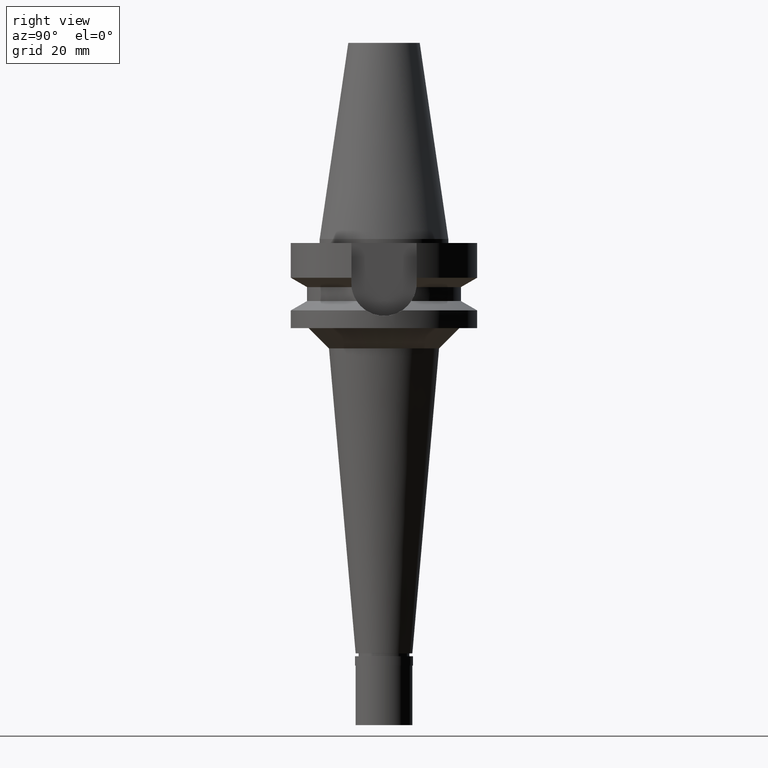
[diagram: clean part render]
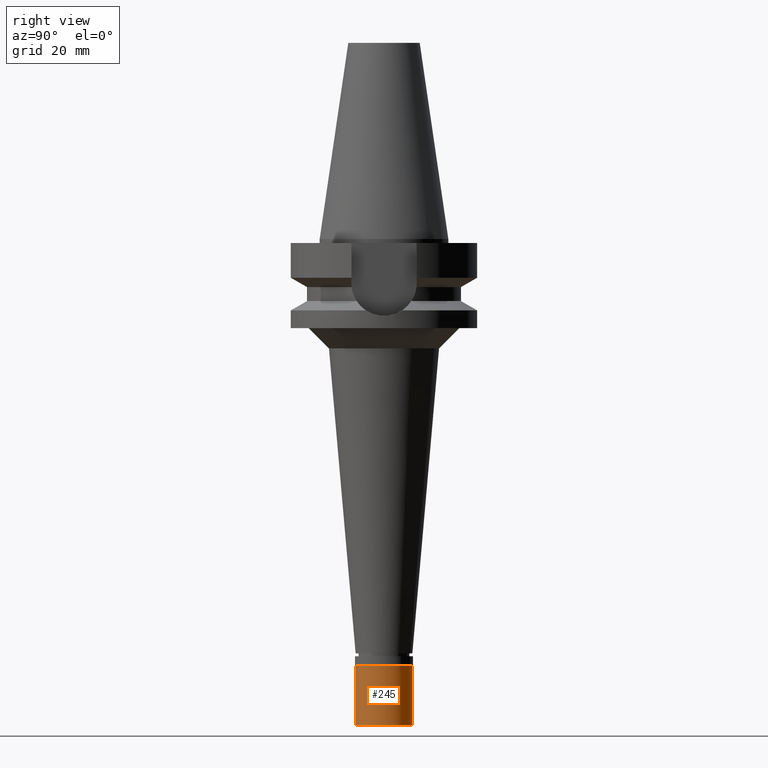
[diagram: same view with one face highlighted and labeled with its STEP entity id]
A machine part, right view. The second image highlights one B-rep face of the part: STEP entity #245.
In plain terms, the highlighted cylindrical surface (edge-blend (fillet) strip) has radius 7 mm, axis along (0, 0, 1).
Its self-contained STEP definition (entity closure, byte-faithful):
#6 = CARTESIAN_POINT ( 'NONE',  ( 0.0000000000000000000, 7.000000000000000000, -17.00000000000000000 ) ) ;
#63 = CYLINDRICAL_SURFACE ( 'NONE', #2703, 7.000000000000000000 ) ;
#146 = CARTESIAN_POINT ( 'NONE',  ( 0.0000000000000000000, 7.000000000000000000, -2.299999999999999822 ) ) ;
#245 = ADVANCED_FACE ( 'NONE', ( #2552 ), #63, .T. ) ;
#392 = DIRECTION ( 'NONE',  ( 0.0000000000000000000, 0.0000000000000000000, 1.000000000000000000 ) ) ;
#428 = EDGE_CURVE ( 'NONE', #584, #2195, #820, .T. ) ;
#510 = DIRECTION ( 'NONE',  ( 0.0000000000000000000, 1.000000000000000000, 0.0000000000000000000 ) ) ;
#584 = VERTEX_POINT ( 'NONE', #146 ) ;
#595 = EDGE_LOOP ( 'NONE', ( #1697, #742, #2941, #1247 ) ) ;
#674 = DIRECTION ( 'NONE',  ( 0.0000000000000000000, -1.000000000000000000, 0.0000000000000000000 ) ) ;
#681 = EDGE_CURVE ( 'NONE', #2131, #2195, #2602, .T. ) ;
#742 = ORIENTED_EDGE ( 'NONE', *, *, #819, .T. ) ;
#804 = AXIS2_PLACEMENT_3D ( 'NONE', #2629, #1729, #1750 ) ;
#819 = EDGE_CURVE ( 'NONE', #966, #2131, #1202, .T. ) ;
#820 = LINE ( 'NONE', #1458, #2413 ) ;
#966 = VERTEX_POINT ( 'NONE', #2279 ) ;
#1202 = LINE ( 'NONE', #2803, #1700 ) ;
#1247 = ORIENTED_EDGE ( 'NONE', *, *, #428, .F. ) ;
#1421 = EDGE_CURVE ( 'NONE', #584, #966, #2241, .T. ) ;
#1458 = CARTESIAN_POINT ( 'NONE',  ( 0.0000000000000000000, 7.000000000000000000, -2.299999999999999822 ) ) ;
#1673 = CARTESIAN_POINT ( 'NONE',  ( 0.0000000000000000000, 0.0000000000000000000, -17.85000000000000142 ) ) ;
#1697 = ORIENTED_EDGE ( 'NONE', *, *, #1421, .T. ) ;
#1700 = VECTOR ( 'NONE', #2228, 1000.000000000000000 ) ;
#1726 = DIRECTION ( 'NONE',  ( 0.0000000000000000000, 0.0000000000000000000, -1.000000000000000000 ) ) ;
#1729 = DIRECTION ( 'NONE',  ( 0.0000000000000000000, 0.0000000000000000000, -1.000000000000000000 ) ) ;
#1750 = DIRECTION ( 'NONE',  ( 0.0000000000000000000, 1.000000000000000000, 0.0000000000000000000 ) ) ;
#2131 = VERTEX_POINT ( 'NONE', #2943 ) ;
#2195 = VERTEX_POINT ( 'NONE', #6 ) ;
#2228 = DIRECTION ( 'NONE',  ( 0.0000000000000000000, 0.0000000000000000000, -1.000000000000000000 ) ) ;
#2241 = CIRCLE ( 'NONE', #804, 7.000000000000000000 ) ;
#2279 = CARTESIAN_POINT ( 'NONE',  ( 0.0000000000000000000, -7.000000000000000000, -2.299999999999999822 ) ) ;
#2413 = VECTOR ( 'NONE', #1726, 1000.000000000000000 ) ;
#2552 = FACE_OUTER_BOUND ( 'NONE', #595, .T. ) ;
#2602 = CIRCLE ( 'NONE', #2701, 7.000000000000000000 ) ;
#2629 = CARTESIAN_POINT ( 'NONE',  ( 0.0000000000000000000, 0.0000000000000000000, -2.299999999999999822 ) ) ;
#2701 = AXIS2_PLACEMENT_3D ( 'NONE', #2880, #392, #674 ) ;
#2703 = AXIS2_PLACEMENT_3D ( 'NONE', #1673, #2817, #510 ) ;
#2803 = CARTESIAN_POINT ( 'NONE',  ( 0.0000000000000000000, -7.000000000000000000, -2.299999999999999822 ) ) ;
#2817 = DIRECTION ( 'NONE',  ( 0.0000000000000000000, 0.0000000000000000000, 1.000000000000000000 ) ) ;
#2880 = CARTESIAN_POINT ( 'NONE',  ( 0.0000000000000000000, 0.0000000000000000000, -17.00000000000000000 ) ) ;
#2941 = ORIENTED_EDGE ( 'NONE', *, *, #681, .T. ) ;
#2943 = CARTESIAN_POINT ( 'NONE',  ( 0.0000000000000000000, -7.000000000000000000, -17.00000000000000000 ) ) ;